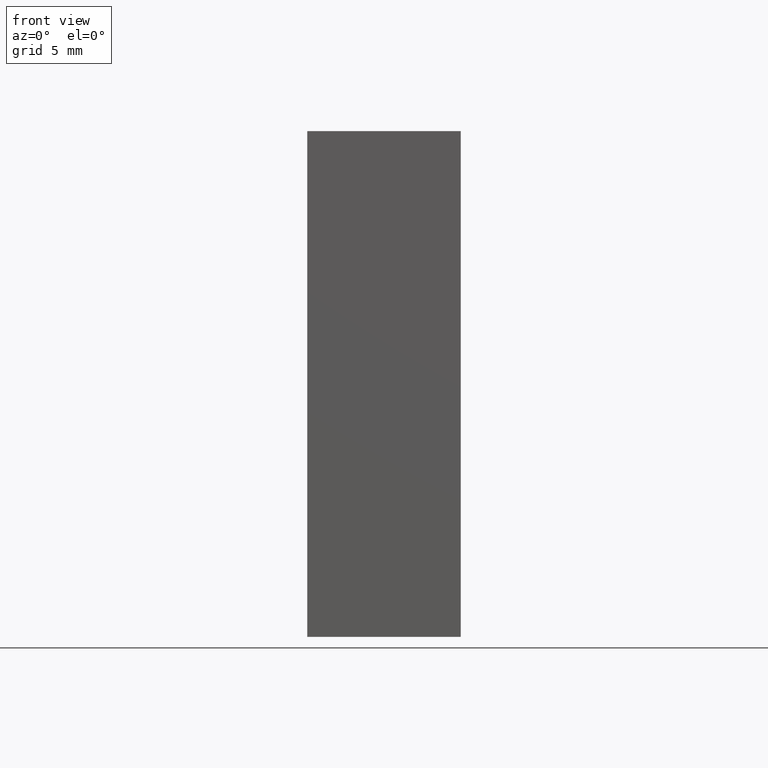
[diagram: clean part render]
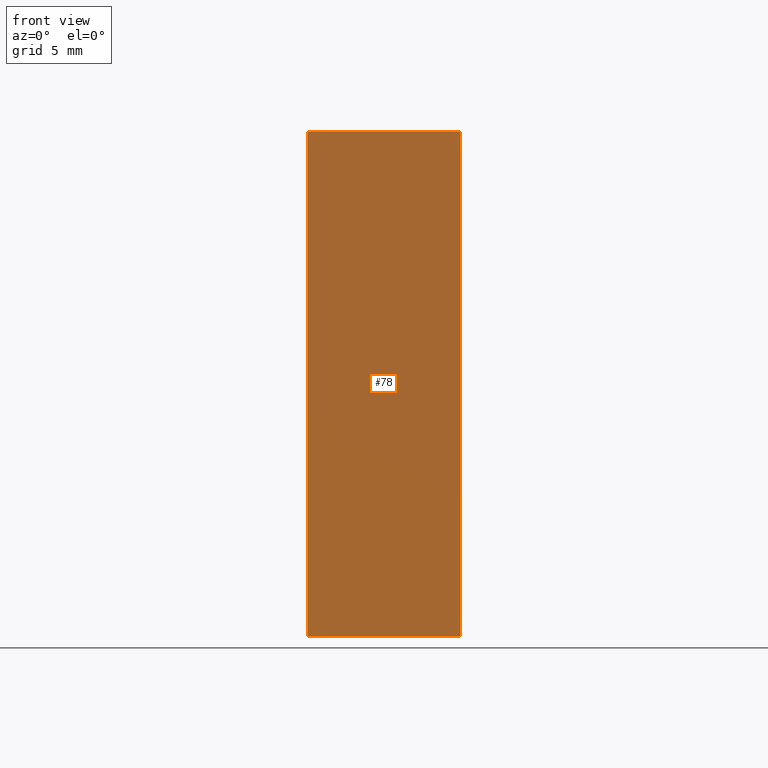
[diagram: same view with one face highlighted and labeled with its STEP entity id]
A machine part, front view. The second image highlights one B-rep face of the part: STEP entity #78.
In plain terms, the highlighted planar face has unit normal (-0, 1, 0).
Its self-contained STEP definition (entity closure, byte-faithful):
#1 = VERTEX_POINT ( 'NONE', #62 ) ;
#8 = DIRECTION ( 'NONE',  ( -0.0000000000000000000, -0.0000000000000000000, -1.000000000000000000 ) ) ;
#13 = CARTESIAN_POINT ( 'NONE',  ( 284.7071356312820900, 54.35792926776707600, 25.00000000000000000 ) ) ;
#14 = FACE_OUTER_BOUND ( 'NONE', #188, .T. ) ;
#18 = ORIENTED_EDGE ( 'NONE', *, *, #32, .F. ) ;
#28 = CARTESIAN_POINT ( 'NONE',  ( 292.2948438035605200, 54.35792926776710500, 25.00000000000000000 ) ) ;
#32 = EDGE_CURVE ( 'NONE', #86, #133, #105, .T. ) ;
#33 = VECTOR ( 'NONE', #155, 1000.000000000000000 ) ;
#39 = ORIENTED_EDGE ( 'NONE', *, *, #40, .F. ) ;
#40 = EDGE_CURVE ( 'NONE', #189, #86, #168, .T. ) ;
#48 = PLANE ( 'NONE',  #79 ) ;
#62 = CARTESIAN_POINT ( 'NONE',  ( 284.7071356312820900, 54.35792926776707600, 0.0000000000000000000 ) ) ;
#73 = VECTOR ( 'NONE', #8, 1000.000000000000000 ) ;
#76 = VECTOR ( 'NONE', #175, 1000.000000000000000 ) ;
#78 = ADVANCED_FACE ( 'NONE', ( #14 ), #48, .F. ) ;
#79 = AXIS2_PLACEMENT_3D ( 'NONE', #141, #160, #174 ) ;
#86 = VERTEX_POINT ( 'NONE', #116 ) ;
#99 = CARTESIAN_POINT ( 'NONE',  ( 284.7071356312820900, 54.35792926776707600, 25.00000000000000000 ) ) ;
#104 = CARTESIAN_POINT ( 'NONE',  ( 292.2948438035605200, 54.35792926776711200, 0.0000000000000000000 ) ) ;
#105 = LINE ( 'NONE', #191, #33 ) ;
#113 = VECTOR ( 'NONE', #172, 1000.000000000000000 ) ;
#115 = EDGE_CURVE ( 'NONE', #189, #1, #122, .T. ) ;
#116 = CARTESIAN_POINT ( 'NONE',  ( 292.2948438035605200, 54.35792926776711200, 25.00000000000000000 ) ) ;
#122 = LINE ( 'NONE', #99, #73 ) ;
#133 = VERTEX_POINT ( 'NONE', #104 ) ;
#141 = CARTESIAN_POINT ( 'NONE',  ( 292.2948438035605200, 54.35792926776710500, 25.00000000000000000 ) ) ;
#144 = EDGE_CURVE ( 'NONE', #1, #133, #177, .T. ) ;
#155 = DIRECTION ( 'NONE',  ( -0.0000000000000000000, -0.0000000000000000000, -1.000000000000000000 ) ) ;
#160 = DIRECTION ( 'NONE',  ( -3.657965618265793200E-015, 1.000000000000000000, 0.0000000000000000000 ) ) ;
#168 = LINE ( 'NONE', #28, #113 ) ;
#172 = DIRECTION ( 'NONE',  ( 1.000000000000000000, 3.657965618265793200E-015, -0.0000000000000000000 ) ) ;
#174 = DIRECTION ( 'NONE',  ( -1.000000000000000000, -3.657965618265793200E-015, 0.0000000000000000000 ) ) ;
#175 = DIRECTION ( 'NONE',  ( 1.000000000000000000, 3.657965618265793200E-015, -0.0000000000000000000 ) ) ;
#177 = LINE ( 'NONE', #179, #76 ) ;
#179 = CARTESIAN_POINT ( 'NONE',  ( 292.2948438035605200, 54.35792926776710500, 0.0000000000000000000 ) ) ;
#185 = ORIENTED_EDGE ( 'NONE', *, *, #115, .T. ) ;
#188 = EDGE_LOOP ( 'NONE', ( #232, #18, #39, #185 ) ) ;
#189 = VERTEX_POINT ( 'NONE', #13 ) ;
#191 = CARTESIAN_POINT ( 'NONE',  ( 292.2948438035605200, 54.35792926776711200, 25.00000000000000000 ) ) ;
#232 = ORIENTED_EDGE ( 'NONE', *, *, #144, .T. ) ;